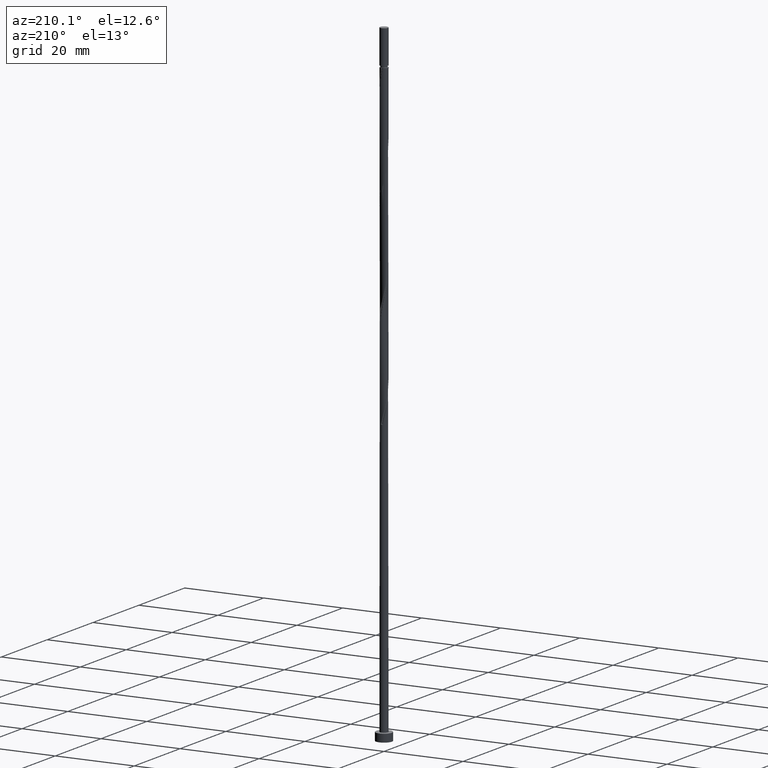
[diagram: clean part render]
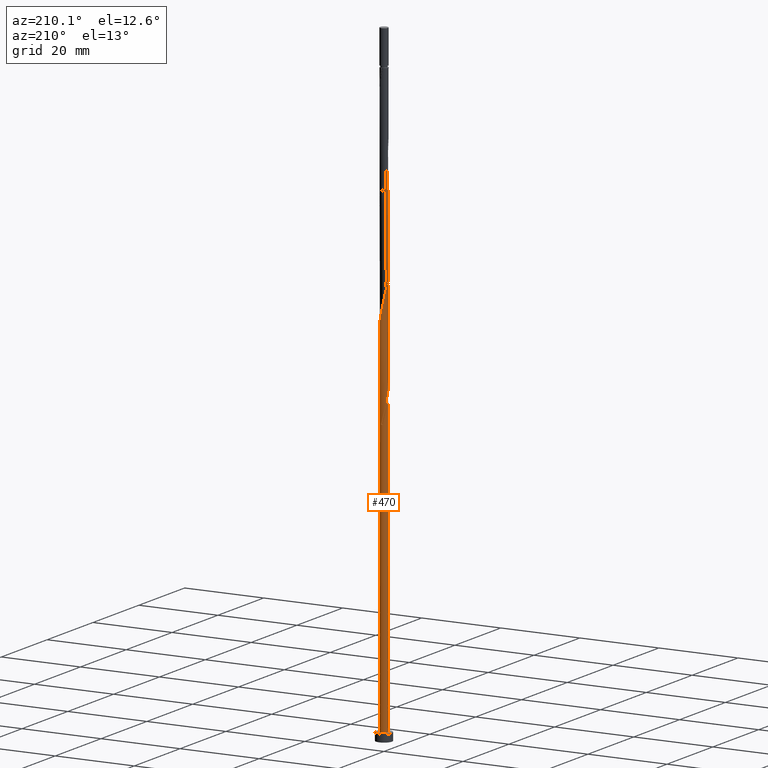
[diagram: same view with one face highlighted and labeled with its STEP entity id]
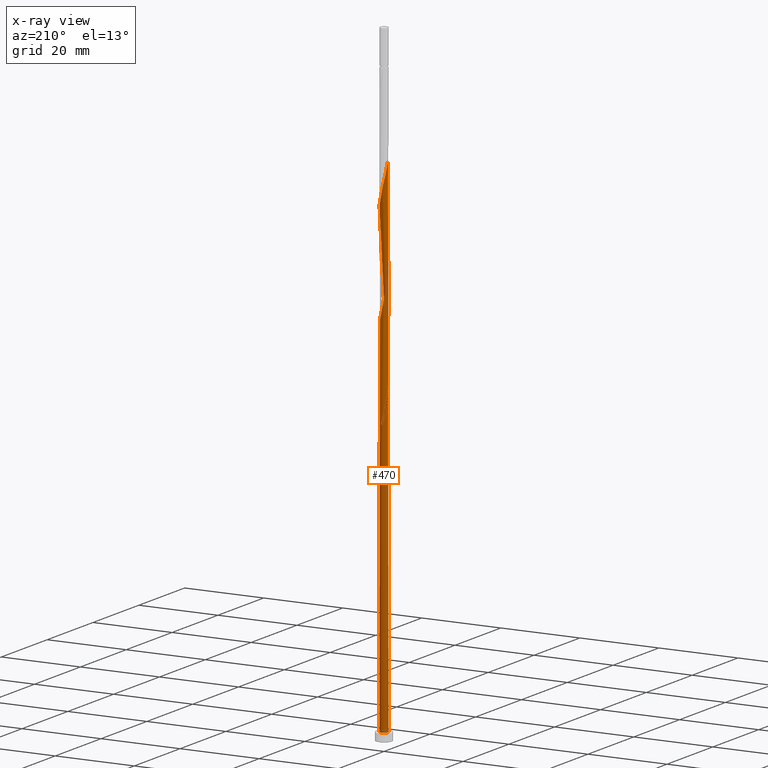
[diagram: x-ray of the same camera — body ghosted, the highlighted face saturated]
A machine part, auxiliary view. The second image highlights one B-rep face of the part: STEP entity #470.
The next image is the same camera in x-ray: the body ghosted, the highlighted face saturated — about 0% of this face is hidden behind the body in this view.
In plain terms, the highlighted cylindrical surface (bore or boss wall) has radius 1 mm, axis along (-0, -0, -1).
Its self-contained STEP definition (entity closure, byte-faithful):
#11 = LINE ( 'NONE', #752, #112 ) ;
#16 = EDGE_CURVE ( 'NONE', #643, #1406, #291, .T. ) ;
#22 = AXIS2_PLACEMENT_3D ( 'NONE', #164, #686, #1125 ) ;
#27 = CYLINDRICAL_SURFACE ( 'NONE', #1020, 1.000000000000000000 ) ;
#32 = DIRECTION ( 'NONE',  ( -0.000000000000000000, -0.000000000000000000, -1.000000000000000000 ) ) ;
#39 = CARTESIAN_POINT ( 'NONE',  ( -0.9417047178041585420, -0.3364405214378813902, 105.0313641457682365 ) ) ;
#49 = CARTESIAN_POINT ( 'NONE',  ( -0.3399002155364022615, 0.9513884807492761775, 71.69803081243489373 ) ) ;
#51 = CARTESIAN_POINT ( 'NONE',  ( -0.9415987439861389641, 0.3661475155560040551, 102.0010611154651627 ) ) ;
#52 = ORIENTED_EDGE ( 'NONE', *, *, #928, .T. ) ;
#58 = CARTESIAN_POINT ( 'NONE',  ( -0.6972353404242070951, 0.7168422979034815290, 100.1828792972833782 ) ) ;
#66 = CARTESIAN_POINT ( 'NONE',  ( -0.9983453082824708114, 0.05750343842224257124, 78.36469747910153671 ) ) ;
#87 = CARTESIAN_POINT ( 'NONE',  ( -0.3624206617887654192, -0.9320146264456353746, 108.6677277821318626 ) ) ;
#93 = CARTESIAN_POINT ( 'NONE',  ( 0.8087728116229552233, 0.5881211942954475136, 92.91015202455609767 ) ) ;
#105 = CARTESIAN_POINT ( 'NONE',  ( -0.8003017030802063170, 0.6165949901442845382, 127.4556065700106444 ) ) ;
#108 = CARTESIAN_POINT ( 'NONE',  ( 0.9415987439861391861, -0.3661475155560037220, 88.66772778213186257 ) ) ;
#112 = VECTOR ( 'NONE', #32, 1000.000000000000000 ) ;
#120 =( BOUNDED_CURVE ( )  B_SPLINE_CURVE ( 2, ( #1196, #681, #66, #1015, #1024, #1506, #324, #1492, #1383, #906, #548, #812, #1395, #311, #664 ),
 .UNSPECIFIED., .F., .T. ) 
 B_SPLINE_CURVE_WITH_KNOTS ( ( 3, 2, 2, 2, 2, 2, 2, 3 ),
 ( 0.9295252162417509956, 0.9318181818181817677, 0.9431818181818182323, 0.9545454545454545858, 0.9659090909090909394, 0.9772727272727272929, 0.9886363636363636465, 1.000000000000000000 ),
 .UNSPECIFIED. ) 
 CURVE ( )  GEOMETRIC_REPRESENTATION_ITEM ( )  RATIONAL_B_SPLINE_CURVE ( ( 0.9061101570135532413, 0.9072237824201354606, 0.9090909090909131685, 0.8998376744372155178, 0.9090909090909131685, 0.8998376744372155178, 0.9090909090909131685, 0.8998376744372155178, 0.9090909090909131685, 0.8998376744372155178, 0.9090909090909131685, 0.8998376744372155178, 0.9090909090909131685, 0.8998376744372155178, 0.9090909090909131685 ) ) 
 REPRESENTATION_ITEM ( '' )  );
#124 = CARTESIAN_POINT ( 'NONE',  ( -0.9417047178041585420, -0.3364405214378813902, 78.36469747910157935 ) ) ;
#130 = CARTESIAN_POINT ( 'NONE',  ( 0.000000000000000000, 0.000000000000000000, 2.000000000000000000 ) ) ;
#134 = CARTESIAN_POINT ( 'NONE',  ( 0.2284171888200494660, 0.9841228509061530350, 122.6071217215258145 ) ) ;
#137 = VERTEX_POINT ( 'NONE', #1031 ) ;
#139 = CARTESIAN_POINT ( 'NONE',  ( 0.000000000000000000, 0.000000000000000000, 160.0000000000000000 ) ) ;
#145 = CARTESIAN_POINT ( 'NONE',  ( -0.1989974874213281120, 0.9800000000000010925, 97.75863687304092764 ) ) ;
#164 = CARTESIAN_POINT ( 'NONE',  ( 0.000000000000000000, 0.000000000000000000, 2.000000000000000000 ) ) ;
#184 = CARTESIAN_POINT ( 'NONE',  ( -0.5941689777682083173, 0.8170896056626784087, 72.91015202455609767 ) ) ;
#216 = CARTESIAN_POINT ( 'NONE',  ( 0.8003017030802062060, -0.6165949901442845382, 87.45560657001064442 ) ) ;
#221 = CARTESIAN_POINT ( 'NONE',  ( -0.7242137496448691758, -0.7044051693801139935, 80.18287929728334973 ) ) ;
#234 = EDGE_CURVE ( 'NONE', #1406, #1422, #11, .T. ) ;
#243 = CARTESIAN_POINT ( 'NONE',  ( -0.9983453082824716995, -0.05750343842224243940, 77.15257626698036120 ) ) ;
#258 = CARTESIAN_POINT ( 'NONE',  ( -0.4670345966523052894, 0.8842390432059773486, 125.6374247518288172 ) ) ;
#261 = VERTEX_POINT ( 'NONE', #1226 ) ;
#278 = CARTESIAN_POINT ( 'NONE',  ( -0.9900775620072765904, -0.2010438236649818300, 104.4253035397076133 ) ) ;
#288 = CARTESIAN_POINT ( 'NONE',  ( -0.7242137496448691758, -0.7044051693801139935, 106.8495459639500069 ) ) ;
#291 =( BOUNDED_CURVE ( )  B_SPLINE_CURVE ( 2, ( #486, #955, #243, #1061, #124, #367, #1402, #221, #619, #476, #1413, #1179, #349, #942, #468, #836, #1423, #493, #1054, #216, #1301, #108, #1087, #1069, #841, #589, #1185, #334, #93, #824, #1287, #1169, #883, #1135, #297, #754, #145, #1363, #418, #659, #58, #1345, #557, #51, #1245, #435, #426, #278, #39, #407, #893, #288, #593, #695, #87, #803, #690, #1050, #564, #579, #337, #1041, #1156, #1507, #1290, #1526, #456, #820, #1028, #1261, #1195, #613, #1417, #481, #1441, #1316, #1182, #134, #379, #862, #346, #1327, #258, #959, #630, #105, #950, #1306, #782, #889, #1352 ),
 .UNSPECIFIED., .F., .T. ) 
 B_SPLINE_CURVE_WITH_KNOTS ( ( 3, 2, 2, 2, 2, 2, 2, 2, 2, 2, 2, 2, 2, 2, 2, 2, 2, 2, 2, 2, 2, 2, 2, 2, 2, 2, 2, 2, 2, 2, 2, 2, 2, 2, 2, 2, 2, 2, 2, 2, 2, 2, 2, 2, 2, 3 ),
 ( 0.05452521624175090537, 0.05681818181818176772, 0.06818181818181823228, 0.07954545454545458583, 0.09090909090909093937, 0.1022727272727272929, 0.1136363636363636465, 0.1250000000000000000, 0.1363636363636363535, 0.1477272727272727071, 0.1590909090909090606, 0.1704545454545454142, 0.1818181818181817677, 0.1931818181818182323, 0.2045454545454545858, 0.2159090909090909394, 0.2272727272727272929, 0.2386363636363636465, 0.2500000000000000000, 0.2613636363636363535, 0.2727272727272727071, 0.2840909090909090606, 0.2954545454545454142, 0.3068181818181817677, 0.3181818181818182323, 0.3295454545454545858, 0.3409090909090909394, 0.3522727272727272929, 0.3636363636363636465, 0.3750000000000000000, 0.3863636363636363535, 0.3977272727272727071, 0.4090909090909090606, 0.4204545454545454142, 0.4318181818181817677, 0.4431818181818182323, 0.4545454545454545858, 0.4659090909090909394, 0.4772727272727272929, 0.4886363636363636465, 0.5000000000000000000, 0.5113636363636363535, 0.5227272727272727071, 0.5340909090909091717, 0.5454545454545454142, 0.5545252162417508845 ),
 .UNSPECIFIED. ) 
 CURVE ( )  GEOMETRIC_REPRESENTATION_ITEM ( )  RATIONAL_B_SPLINE_CURVE ( ( 0.9061101570135652317, 0.9072237824201475620, 0.9090909090909253809, 0.8998376744372276193, 0.9090909090909253809, 0.8998376744372276193, 0.9090909090909253809, 0.8998376744372276193, 0.9090909090909253809, 0.8998376744372276193, 0.9090909090909253809, 0.8998376744372276193, 0.9090909090909253809, 0.8998376744372276193, 0.9090909090909253809, 0.8998376744372276193, 0.9090909090909253809, 0.8998376744372276193, 0.9090909090909253809, 0.8998376744372276193, 0.9090909090909253809, 0.8998376744372276193, 0.9090909090909253809, 0.8998376744372276193, 0.9090909090909253809, 0.8998376744372276193, 0.9090909090909253809, 0.8998376744372276193, 0.9090909090909253809, 0.8998376744372276193, 0.9090909090909253809, 0.8998376744372276193, 0.9090909090909253809, 0.8998376744372276193, 0.9090909090909253809, 0.8998376744372276193, 0.9090909090909253809, 0.8998376744372276193, 0.9090909090909253809, 0.8998376744372276193, 0.9090909090909253809, 0.8998376744372276193, 0.9090909090909253809, 0.8998376744372276193, 0.9090909090909253809, 0.8998376744372276193, 0.9090909090909253809, 0.8998376744372276193, 0.9090909090909253809, 0.8998376744372276193, 0.9090909090909253809, 0.8998376744372276193, 0.9090909090909253809, 0.8998376744372276193, 0.9090909090909253809, 0.8998376744372276193, 0.9090909090909253809, 0.8998376744372276193, 0.9090909090909253809, 0.8998376744372276193, 0.9090909090909253809, 0.8998376744372276193, 0.9090909090909253809, 0.8998376744372276193, 0.9090909090909253809, 0.8998376744372276193, 0.9090909090909253809, 0.8998376744372276193, 0.9090909090909253809, 0.8998376744372276193, 0.9090909090909253809, 0.8998376744372276193, 0.9090909090909253809, 0.8998376744372276193, 0.9090909090909253809, 0.8998376744372276193, 0.9090909090909253809, 0.8998376744372276193, 0.9090909090909253809, 0.8998376744372276193, 0.9090909090909253809, 0.8998376744372276193, 0.9090909090909253809, 0.8998376744372276193, 0.9090909090909253809, 0.8998376744372276193, 0.9090909090909253809, 0.8998376744372276193, 0.9090909090909253809, 0.9017048011080055492, 0.9061101570135652317 ) ) 
 REPRESENTATION_ITEM ( '' )  );
#297 = CARTESIAN_POINT ( 'NONE',  ( 0.08516121475689758524, 0.9963671850784392436, 96.54651566091973791 ) ) ;
#298 = VERTEX_POINT ( 'NONE', #1468 ) ;
#305 = EDGE_CURVE ( 'NONE', #1422, #261, #120, .T. ) ;
#311 = CARTESIAN_POINT ( 'NONE',  ( 0.05809475930625434409, 1.008611519250725230, 71.69803081243489373 ) ) ;
#318 = DIRECTION ( 'NONE',  ( 0.000000000000000000, 0.000000000000000000, -1.000000000000000000 ) ) ;
#324 = CARTESIAN_POINT ( 'NONE',  ( -0.8087728116229545572, 0.5881211942954474026, 75.94045505485910041 ) ) ;
#334 = CARTESIAN_POINT ( 'NONE',  ( 0.8933318736010409378, 0.4718372192107809782, 92.30409141849550281 ) ) ;
#337 = CARTESIAN_POINT ( 'NONE',  ( 0.4670345966523050119, -0.8842390432059774596, 112.3040914184955028 ) ) ;
#346 = CARTESIAN_POINT ( 'NONE',  ( -0.1989974874213281120, 0.9800000000000010925, 124.4253035397076275 ) ) ;
#349 = CARTESIAN_POINT ( 'NONE',  ( -0.08516121475689751585, -0.9963671850784392436, 83.21318232758639510 ) ) ;
#367 = CARTESIAN_POINT ( 'NONE',  ( -0.8933318736010408267, -0.4718372192107813112, 78.97075808516213158 ) ) ;
#379 = CARTESIAN_POINT ( 'NONE',  ( 0.08516121475689758524, 0.9963671850784392436, 123.2131823275864093 ) ) ;
#387 = EDGE_CURVE ( 'NONE', #137, #1504, #1364, .T. ) ;
#391 =( BOUNDED_CURVE ( )  B_SPLINE_CURVE ( 2, ( #1130, #49, #552, #184, #545, #429, #910, #1008, #678, #1137, #1300 ),
 .UNSPECIFIED., .F., .T. ) 
 B_SPLINE_CURVE_WITH_KNOTS ( ( 3, 2, 2, 2, 2, 3 ),
 ( 0.000000000000000000, 0.01136363636363635528, 0.02272727272727271056, 0.03409090909090906063, 0.04545454545454542111, 0.05452521624175091230 ),
 .UNSPECIFIED. ) 
 CURVE ( )  GEOMETRIC_REPRESENTATION_ITEM ( )  RATIONAL_B_SPLINE_CURVE ( ( 0.9090909090909253809, 0.8998376744372276193, 0.9090909090909253809, 0.8998376744372276193, 0.9090909090909253809, 0.8998376744372276193, 0.9090909090909253809, 0.8998376744372276193, 0.9090909090909253809, 0.9017048011080054382, 0.9061101570135652317 ) ) 
 REPRESENTATION_ITEM ( '' )  );
#401 = CARTESIAN_POINT ( 'NONE',  ( -1.000000000000000000, 0.000000000000000000, 160.0000000000000000 ) ) ;
#406 = AXIS2_PLACEMENT_3D ( 'NONE', #1253, #318, #1462 ) ;
#407 = CARTESIAN_POINT ( 'NONE',  ( -0.8933318736010408267, -0.4718372192107813112, 105.6374247518288314 ) ) ;
#410 = EDGE_CURVE ( 'NONE', #643, #137, #621, .T. ) ;
#418 = CARTESIAN_POINT ( 'NONE',  ( -0.4670345966523052894, 0.8842390432059773486, 98.97075808516216000 ) ) ;
#419 = ORIENTED_EDGE ( 'NONE', *, *, #305, .F. ) ;
#426 = CARTESIAN_POINT ( 'NONE',  ( -0.9983453082824716995, -0.05750343842224243940, 103.8192429336470184 ) ) ;
#427 = ORIENTED_EDGE ( 'NONE', *, *, #520, .F. ) ;
#429 = CARTESIAN_POINT ( 'NONE',  ( -0.8003017030802063170, 0.6165949901442845382, 74.12227323667730161 ) ) ;
#435 = CARTESIAN_POINT ( 'NONE',  ( -1.006613054557666587, 0.08603694682049708997, 103.2131823275864093 ) ) ;
#456 = CARTESIAN_POINT ( 'NONE',  ( 0.9741058992719027199, -0.2260922311882504754, 115.9404550548591146 ) ) ;
#468 = CARTESIAN_POINT ( 'NONE',  ( 0.1989974874213282230, -0.9800000000000010925, 84.42530353970759904 ) ) ;
#470 = ADVANCED_FACE ( 'NONE', ( #538 ), #27, .T. ) ;
#476 = CARTESIAN_POINT ( 'NONE',  ( -0.4964241347574810947, -0.8799064019851177143, 81.39500050940456788 ) ) ;
#481 = CARTESIAN_POINT ( 'NONE',  ( 0.7242137496448697309, 0.7044051693801136604, 120.1828792972833639 ) ) ;
#486 = CARTESIAN_POINT ( 'NONE',  ( -1.000000000000001776, 8.226251386922981829E-16, 76.90918239374005339 ) ) ;
#493 = CARTESIAN_POINT ( 'NONE',  ( 0.5941689777682083173, -0.8170896056626782977, 86.24348535788942627 ) ) ;
#518 = ORIENTED_EDGE ( 'NONE', *, *, #410, .F. ) ;
#520 = EDGE_CURVE ( 'NONE', #298, #643, #391, .T. ) ;
#533 = CARTESIAN_POINT ( 'NONE',  ( -1.000000000000001998, -5.683591867328604570E-16, 130.2425157270733678 ) ) ;
#535 = VECTOR ( 'NONE', #1222, 1000.000000000000000 ) ;
#538 = FACE_OUTER_BOUND ( 'NONE', #614, .T. ) ;
#540 = CARTESIAN_POINT ( 'NONE',  ( -1.000000000000001332, -6.805353420090921159E-16, 78.60809135234183032 ) ) ;
#545 = CARTESIAN_POINT ( 'NONE',  ( -0.6972353404242070951, 0.7168422979034815290, 73.51621263061670675 ) ) ;
#548 = CARTESIAN_POINT ( 'NONE',  ( -0.3624206617887649751, 0.9320146264456348195, 73.51621263061669254 ) ) ;
#552 = CARTESIAN_POINT ( 'NONE',  ( -0.4670345966523052894, 0.8842390432059773486, 72.30409141849550281 ) ) ;
#557 = CARTESIAN_POINT ( 'NONE',  ( -0.8709502235331727515, 0.4913712528501442689, 101.3950005094045821 ) ) ;
#564 = CARTESIAN_POINT ( 'NONE',  ( 0.1989974874213282230, -0.9800000000000010925, 111.0919702063742704 ) ) ;
#579 = CARTESIAN_POINT ( 'NONE',  ( 0.3399002155364020950, -0.9513884807492761775, 111.6980308124348937 ) ) ;
#588 = ORIENTED_EDGE ( 'NONE', *, *, #16, .F. ) ;
#589 = CARTESIAN_POINT ( 'NONE',  ( 0.9900775620072765904, 0.2010438236649816635, 91.09197020637428466 ) ) ;
#593 = CARTESIAN_POINT ( 'NONE',  ( -0.6103189422011752185, -0.7921557856826156874, 107.4556065700106728 ) ) ;
#613 = CARTESIAN_POINT ( 'NONE',  ( 0.8933318736010409378, 0.4718372192107809782, 118.9707580851621600 ) ) ;
#614 = EDGE_LOOP ( 'NONE', ( #778, #588, #755, #651, #52, #518, #427, #746, #419 ) ) ;
#619 = CARTESIAN_POINT ( 'NONE',  ( -0.6103189422011752185, -0.7921557856826156874, 80.78893990334394459 ) ) ;
#621 = LINE ( 'NONE', #401, #535 ) ;
#630 = CARTESIAN_POINT ( 'NONE',  ( -0.6972353404242070951, 0.7168422979034815290, 126.8495459639500496 ) ) ;
#636 = CIRCLE ( 'NONE', #22, 1.000000000000000000 ) ;
#637 = DIRECTION ( 'NONE',  ( -0.000000000000000000, -0.000000000000000000, -1.000000000000000000 ) ) ;
#643 = VERTEX_POINT ( 'NONE', #795 ) ;
#651 = ORIENTED_EDGE ( 'NONE', *, *, #387, .T. ) ;
#654 = DIRECTION ( 'NONE',  ( 1.000000000000000000, 0.000000000000000000, 0.000000000000000000 ) ) ;
#659 = CARTESIAN_POINT ( 'NONE',  ( -0.5941689777682083173, 0.8170896056626784087, 99.57681869122274065 ) ) ;
#664 = CARTESIAN_POINT ( 'NONE',  ( 0.1989974874213286948, 0.9800000000000006484, 71.09197020637425624 ) ) ;
#678 = CARTESIAN_POINT ( 'NONE',  ( -0.9741058992719026088, 0.2260922311882505864, 75.94045505485911463 ) ) ;
#681 = CARTESIAN_POINT ( 'NONE',  ( -1.000000000000001554, 0.02877552652382282458, 78.48599334762363355 ) ) ;
#684 = AXIS2_PLACEMENT_3D ( 'NONE', #130, #868, #654 ) ;
#686 = DIRECTION ( 'NONE',  ( 0.000000000000000000, 0.000000000000000000, 1.000000000000000000 ) ) ;
#690 = CARTESIAN_POINT ( 'NONE',  ( -0.08516121475689751585, -0.9963671850784392436, 109.8798489942530807 ) ) ;
#695 = CARTESIAN_POINT ( 'NONE',  ( -0.4964241347574810947, -0.8799064019851177143, 108.0616671760712393 ) ) ;
#718 = CARTESIAN_POINT ( 'NONE',  ( 1.000000000000000000, 0.000000000000000000, 2.000000000000000000 ) ) ;
#746 = ORIENTED_EDGE ( 'NONE', *, *, #1410, .T. ) ;
#752 = CARTESIAN_POINT ( 'NONE',  ( -1.000000000000000000, 0.000000000000000000, 160.0000000000000000 ) ) ;
#754 = CARTESIAN_POINT ( 'NONE',  ( -0.05809475930625415674, 1.008611519250725896, 97.15257626698033278 ) ) ;
#755 = ORIENTED_EDGE ( 'NONE', *, *, #410, .T. ) ;
#778 = ORIENTED_EDGE ( 'NONE', *, *, #234, .F. ) ;
#782 = CARTESIAN_POINT ( 'NONE',  ( -0.9741058992719026088, 0.2260922311882505864, 129.2737883881924859 ) ) ;
#795 = CARTESIAN_POINT ( 'NONE',  ( -1.000000000000001776, 8.226251386922981829E-16, 76.90918239374005339 ) ) ;
#803 = CARTESIAN_POINT ( 'NONE',  ( -0.2284171888200492995, -0.9841228509061530350, 109.2737883881924574 ) ) ;
#812 = CARTESIAN_POINT ( 'NONE',  ( -0.2284171888200492717, 0.9841228509061528129, 72.91015202455608346 ) ) ;
#820 = CARTESIAN_POINT ( 'NONE',  ( 1.006613054557666587, -0.08603694682049706222, 116.5465156609197663 ) ) ;
#824 = CARTESIAN_POINT ( 'NONE',  ( 0.7242137496448697309, 0.7044051693801136604, 93.51621263061669254 ) ) ;
#836 = CARTESIAN_POINT ( 'NONE',  ( 0.3399002155364020950, -0.9513884807492761775, 85.03136414576822233 ) ) ;
#841 = CARTESIAN_POINT ( 'NONE',  ( 0.9983453082824716995, 0.05750343842224230062, 90.48590960031364716 ) ) ;
#854 = DIRECTION ( 'NONE',  ( -1.000000000000000000, 0.000000000000000000, 0.000000000000000000 ) ) ;
#862 = CARTESIAN_POINT ( 'NONE',  ( -0.05809475930625415674, 1.008611519250725896, 123.8192429336470184 ) ) ;
#868 = DIRECTION ( 'NONE',  ( 0.000000000000000000, 0.000000000000000000, 1.000000000000000000 ) ) ;
#883 = CARTESIAN_POINT ( 'NONE',  ( 0.3624206617887651416, 0.9320146264456353746, 95.33439444879851976 ) ) ;
#889 = CARTESIAN_POINT ( 'NONE',  ( -1.000000000000000666, 0.1145289273851253231, 129.7565557741020541 ) ) ;
#893 = CARTESIAN_POINT ( 'NONE',  ( -0.8087728116229551123, -0.5881211942954477356, 106.2434853578894405 ) ) ;
#906 = CARTESIAN_POINT ( 'NONE',  ( -0.4964241347574808727, 0.8799064019851173812, 74.12227323667733003 ) ) ;
#910 = CARTESIAN_POINT ( 'NONE',  ( -0.8709502235331727515, 0.4913712528501442689, 74.72833384273791069 ) ) ;
#928 = EDGE_CURVE ( 'NONE', #1504, #137, #636, .T. ) ;
#933 = CIRCLE ( 'NONE', #406, 1.000000000000000000 ) ;
#942 = CARTESIAN_POINT ( 'NONE',  ( 0.05809475930625430939, -1.008611519250725896, 83.81924293364697576 ) ) ;
#950 = CARTESIAN_POINT ( 'NONE',  ( -0.8709502235331727515, 0.4913712528501442689, 128.0616671760712393 ) ) ;
#955 = CARTESIAN_POINT ( 'NONE',  ( -1.000000000000001998, -0.02877552652382155129, 77.03128039845825015 ) ) ;
#959 = CARTESIAN_POINT ( 'NONE',  ( -0.5941689777682083173, 0.8170896056626784087, 126.2434853578894263 ) ) ;
#1008 = CARTESIAN_POINT ( 'NONE',  ( -0.9415987439861389641, 0.3661475155560040551, 75.33439444879851976 ) ) ;
#1015 = CARTESIAN_POINT ( 'NONE',  ( -0.9900775620072762573, 0.2010438236649818855, 77.75863687304097027 ) ) ;
#1020 = AXIS2_PLACEMENT_3D ( 'NONE', #139, #637, #854 ) ;
#1024 = CARTESIAN_POINT ( 'NONE',  ( -0.9417047178041579869, 0.3364405214378813347, 77.15257626698030435 ) ) ;
#1028 = CARTESIAN_POINT ( 'NONE',  ( 0.9983453082824716995, 0.05750343842224230062, 117.1525762669803754 ) ) ;
#1031 = CARTESIAN_POINT ( 'NONE',  ( -1.000000000000000000, 0.000000000000000000, 2.000000000000000000 ) ) ;
#1041 = CARTESIAN_POINT ( 'NONE',  ( 0.5941689777682083173, -0.8170896056626782977, 112.9101520245561119 ) ) ;
#1050 = CARTESIAN_POINT ( 'NONE',  ( 0.05809475930625430939, -1.008611519250725896, 110.4859096003136898 ) ) ;
#1054 = CARTESIAN_POINT ( 'NONE',  ( 0.6972353404242070951, -0.7168422979034815290, 86.84954596395006376 ) ) ;
#1061 = CARTESIAN_POINT ( 'NONE',  ( -0.9900775620072765904, -0.2010438236649818300, 77.75863687304097027 ) ) ;
#1069 = CARTESIAN_POINT ( 'NONE',  ( 1.006613054557666587, -0.08603694682049706222, 89.87984899425305230 ) ) ;
#1087 = CARTESIAN_POINT ( 'NONE',  ( 0.9741058992719027199, -0.2260922311882504754, 89.27378838819247164 ) ) ;
#1125 = DIRECTION ( 'NONE',  ( 1.000000000000000000, 0.000000000000000000, 0.000000000000000000 ) ) ;
#1130 = CARTESIAN_POINT ( 'NONE',  ( -0.1989974874213282230, 0.9800000000000010925, 71.09197020637427045 ) ) ;
#1135 = CARTESIAN_POINT ( 'NONE',  ( 0.2284171888200494660, 0.9841228509061530350, 95.94045505485914305 ) ) ;
#1137 = CARTESIAN_POINT ( 'NONE',  ( -1.000000000000001110, 0.1145289273851239631, 76.42322244076873972 ) ) ;
#1156 = CARTESIAN_POINT ( 'NONE',  ( 0.6972353404242070951, -0.7168422979034815290, 113.5162126306167210 ) ) ;
#1169 = CARTESIAN_POINT ( 'NONE',  ( 0.4964241347574807617, 0.8799064019851177143, 94.72833384273792490 ) ) ;
#1179 = CARTESIAN_POINT ( 'NONE',  ( -0.2284171888200492995, -0.9841228509061530350, 82.60712172152578603 ) ) ;
#1182 = CARTESIAN_POINT ( 'NONE',  ( 0.3624206617887651416, 0.9320146264456353746, 122.0010611154651912 ) ) ;
#1185 = CARTESIAN_POINT ( 'NONE',  ( 0.9417047178041585420, 0.3364405214378812237, 91.69803081243490794 ) ) ;
#1195 = CARTESIAN_POINT ( 'NONE',  ( 0.9417047178041585420, 0.3364405214378812237, 118.3646974791015367 ) ) ;
#1196 = CARTESIAN_POINT ( 'NONE',  ( -1.000000000000001332, -6.805353420090921159E-16, 78.60809135234183032 ) ) ;
#1222 = DIRECTION ( 'NONE',  ( -0.000000000000000000, -0.000000000000000000, -1.000000000000000000 ) ) ;
#1226 = CARTESIAN_POINT ( 'NONE',  ( 0.1989974874213286948, 0.9800000000000006484, 71.09197020637427045 ) ) ;
#1245 = CARTESIAN_POINT ( 'NONE',  ( -0.9741058992719026088, 0.2260922311882505864, 102.6071217215258145 ) ) ;
#1253 = CARTESIAN_POINT ( 'NONE',  ( 0.000000000000000000, 0.000000000000000000, 71.09197020637425624 ) ) ;
#1261 = CARTESIAN_POINT ( 'NONE',  ( 0.9900775620072765904, 0.2010438236649816635, 117.7586368730409561 ) ) ;
#1287 = CARTESIAN_POINT ( 'NONE',  ( 0.6103189422011752185, 0.7921557856826161315, 94.12227323667731582 ) ) ;
#1290 = CARTESIAN_POINT ( 'NONE',  ( 0.8709502235331724185, -0.4913712528501443799, 114.7283338427379391 ) ) ;
#1300 = CARTESIAN_POINT ( 'NONE',  ( -1.000000000000001776, 8.226251386922981829E-16, 76.90918239374005339 ) ) ;
#1301 = CARTESIAN_POINT ( 'NONE',  ( 0.8709502235331724185, -0.4913712528501443799, 88.06166717607122507 ) ) ;
#1306 = CARTESIAN_POINT ( 'NONE',  ( -0.9415987439861389641, 0.3661475155560040551, 128.6677277821318626 ) ) ;
#1316 = CARTESIAN_POINT ( 'NONE',  ( 0.4964241347574807617, 0.8799064019851177143, 121.3950005094045821 ) ) ;
#1327 = CARTESIAN_POINT ( 'NONE',  ( -0.3399002155364022615, 0.9513884807492761775, 125.0313641457682081 ) ) ;
#1345 = CARTESIAN_POINT ( 'NONE',  ( -0.8003017030802063170, 0.6165949901442845382, 100.7889399033439588 ) ) ;
#1352 = CARTESIAN_POINT ( 'NONE',  ( -1.000000000000001998, -5.683591867328603583E-16, 130.2425157270733678 ) ) ;
#1363 = CARTESIAN_POINT ( 'NONE',  ( -0.3399002155364022615, 0.9513884807492761775, 98.36469747910153671 ) ) ;
#1364 = CIRCLE ( 'NONE', #684, 1.000000000000000000 ) ;
#1383 = CARTESIAN_POINT ( 'NONE',  ( -0.6103189422011747745, 0.7921557856826154653, 74.72833384273791069 ) ) ;
#1395 = CARTESIAN_POINT ( 'NONE',  ( -0.08516121475689737708, 0.9963671850784390216, 72.30409141849548860 ) ) ;
#1402 = CARTESIAN_POINT ( 'NONE',  ( -0.8087728116229551123, -0.5881211942954477356, 79.57681869122276908 ) ) ;
#1406 = VERTEX_POINT ( 'NONE', #533 ) ;
#1410 = EDGE_CURVE ( 'NONE', #298, #261, #933, .T. ) ;
#1413 = CARTESIAN_POINT ( 'NONE',  ( -0.3624206617887654192, -0.9320146264456353746, 82.00106111546517695 ) ) ;
#1417 = CARTESIAN_POINT ( 'NONE',  ( 0.8087728116229552233, 0.5881211942954475136, 119.5768186912227833 ) ) ;
#1422 = VERTEX_POINT ( 'NONE', #540 ) ;
#1423 = CARTESIAN_POINT ( 'NONE',  ( 0.4670345966523050119, -0.8842390432059774596, 85.63742475182881719 ) ) ;
#1441 = CARTESIAN_POINT ( 'NONE',  ( 0.6103189422011752185, 0.7921557856826161315, 120.7889399033439872 ) ) ;
#1462 = DIRECTION ( 'NONE',  ( -1.000000000000000000, 0.000000000000000000, 0.000000000000000000 ) ) ;
#1468 = CARTESIAN_POINT ( 'NONE',  ( -0.1989974874213282230, 0.9800000000000010925, 71.09197020637427045 ) ) ;
#1492 = CARTESIAN_POINT ( 'NONE',  ( -0.7242137496448689538, 0.7044051693801141045, 75.33439444879853397 ) ) ;
#1504 = VERTEX_POINT ( 'NONE', #718 ) ;
#1506 = CARTESIAN_POINT ( 'NONE',  ( -0.8933318736010404937, 0.4718372192107812002, 76.54651566091973791 ) ) ;
#1507 = CARTESIAN_POINT ( 'NONE',  ( 0.8003017030802062060, -0.6165949901442845382, 114.1222732366773300 ) ) ;
#1526 = CARTESIAN_POINT ( 'NONE',  ( 0.9415987439861391861, -0.3661475155560037220, 115.3343944487985056 ) ) ;